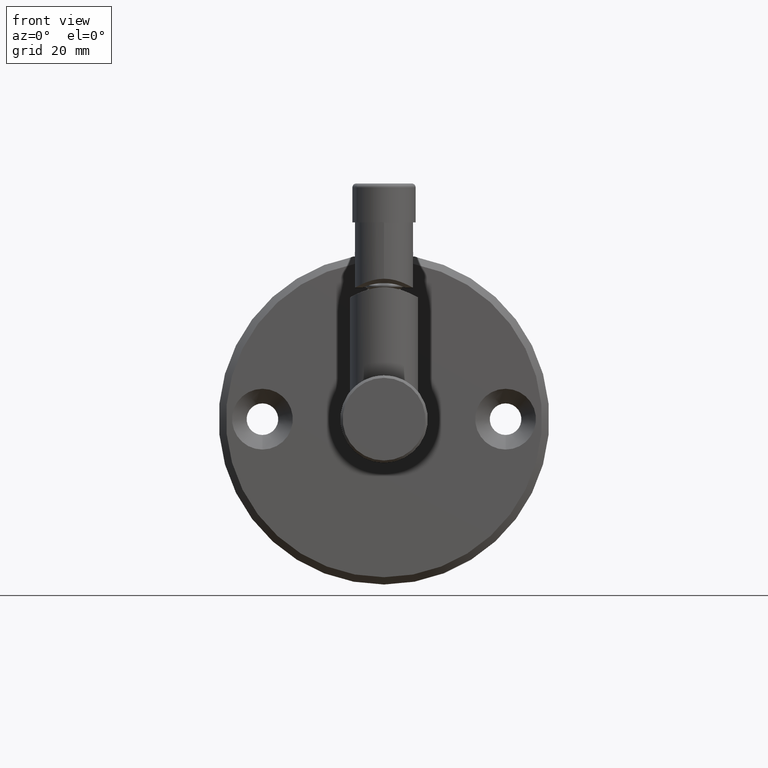
[diagram: clean part render]
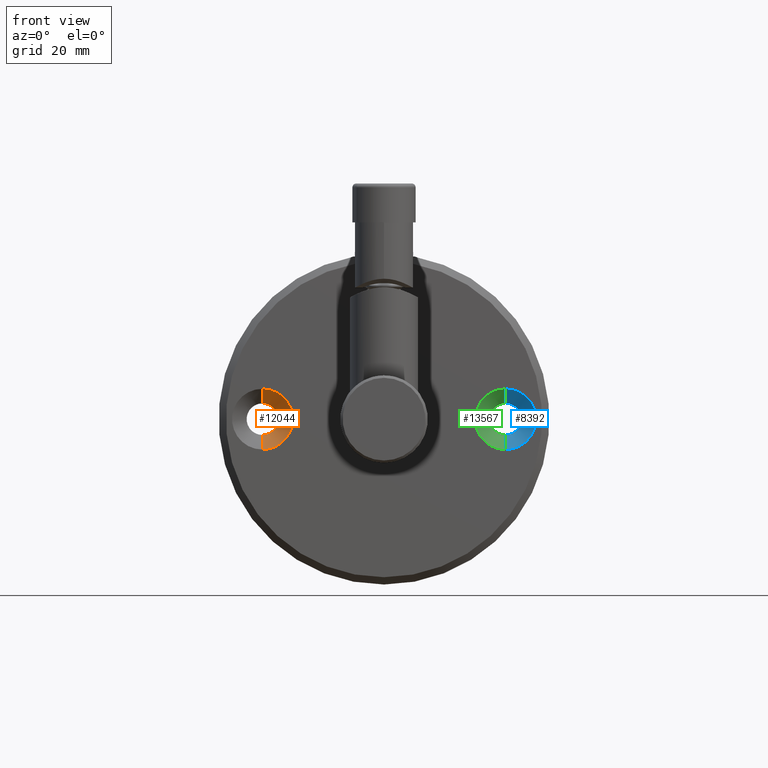
[diagram: same view with three faces highlighted in distinct colors, each labeled with its STEP entity id]
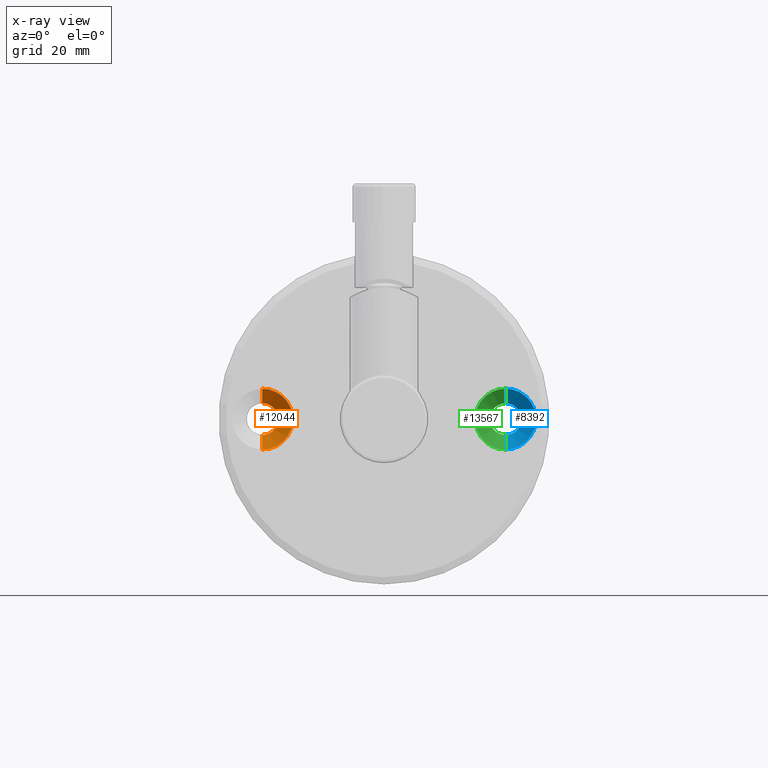
[diagram: x-ray of the same camera — body ghosted, the three highlighted faces saturated]
A machine part, front view with three faces highlighted in distinct colors.
The next image is the same camera in x-ray (body ghosted, the three faces saturated) — at least one of them is partly hidden behind the body in this view.
Their STEP definitions:

[orange] entity #12044 — the highlighted conical surface has half-angle 45 deg.
#1765 = EDGE_CURVE ( 'NONE', #8810, #17771, #25457, .T. ) ;
#2707 = EDGE_CURVE ( 'NONE', #12103, #17771, #18341, .T. ) ;
#3837 = ORIENTED_EDGE ( 'NONE', *, *, #1765, .T. ) ;
#4221 = DIRECTION ( 'NONE',  ( 0.000000000000000000, 0.000000000000000000, 1.000000000000000000 ) ) ;
#4279 = DIRECTION ( 'NONE',  ( 0.7071067811865479058, 0.000000000000000000, 0.7071067811865470176 ) ) ;
#4435 = DIRECTION ( 'NONE',  ( 0.000000000000000000, 0.000000000000000000, 1.000000000000000000 ) ) ;
#4451 = CARTESIAN_POINT ( 'NONE',  ( 6.250000000000006217, -25.00000000000000000, 1.800000000000000488 ) ) ;
#4464 = VERTEX_POINT ( 'NONE', #25448 ) ;
#4734 = CIRCLE ( 'NONE', #18809, 3.250000000000000888 ) ;
#5230 = ORIENTED_EDGE ( 'NONE', *, *, #22059, .T. ) ;
#5260 = ORIENTED_EDGE ( 'NONE', *, *, #2707, .F. ) ;
#6231 = DIRECTION ( 'NONE',  ( 1.000000000000000000, 0.000000000000000000, 0.000000000000000000 ) ) ;
#7490 = DIRECTION ( 'NONE',  ( -0.7071067811865479058, 8.659560562354937789E-17, 0.7071067811865470176 ) ) ;
#7492 = ORIENTED_EDGE ( 'NONE', *, *, #23930, .F. ) ;
#8379 = DIRECTION ( 'NONE',  ( 1.000000000000000000, 0.000000000000000000, 0.000000000000000000 ) ) ;
#8810 = VERTEX_POINT ( 'NONE', #4451 ) ;
#11624 = VECTOR ( 'NONE', #4279, 1000.000000000000114 ) ;
#12044 = ADVANCED_FACE ( 'NONE', ( #18148 ), #23098, .F. ) ;
#12103 = VERTEX_POINT ( 'NONE', #25570 ) ;
#13058 = VECTOR ( 'NONE', #7490, 1000.000000000000114 ) ;
#14495 = CARTESIAN_POINT ( 'NONE',  ( -6.249999999999994671, -25.00000000000000000, 1.800000000000000488 ) ) ;
#15486 = DIRECTION ( 'NONE',  ( 0.000000000000000000, 0.000000000000000000, 1.000000000000000000 ) ) ;
#15844 = EDGE_LOOP ( 'NONE', ( #5260, #7492, #5230, #3837 ) ) ;
#16142 = CARTESIAN_POINT ( 'NONE',  ( 5.640276577966111523E-15, -25.00000000000000000, -1.199999999999995293 ) ) ;
#17771 = VERTEX_POINT ( 'NONE', #14495 ) ;
#17820 = LINE ( 'NONE', #22033, #11624 ) ;
#18148 = FACE_OUTER_BOUND ( 'NONE', #15844, .T. ) ;
#18341 = LINE ( 'NONE', #23593, #13058 ) ;
#18809 = AXIS2_PLACEMENT_3D ( 'NONE', #16142, #4435, #8379 ) ;
#21184 = AXIS2_PLACEMENT_3D ( 'NONE', #25243, #4221, #6231 ) ;
#21530 = DIRECTION ( 'NONE',  ( 1.000000000000000000, 0.000000000000000000, 0.000000000000000000 ) ) ;
#22033 = CARTESIAN_POINT ( 'NONE',  ( 6.250000000000006217, -25.00000000000000000, 1.800000000000000488 ) ) ;
#22059 = EDGE_CURVE ( 'NONE', #4464, #8810, #17820, .T. ) ;
#23098 = CONICAL_SURFACE ( 'NONE', #21184, 6.250000000000000000, 0.7853981633974489451 ) ;
#23593 = CARTESIAN_POINT ( 'NONE',  ( -6.249999999999994671, -25.00000000000000000, 1.800000000000000488 ) ) ;
#23930 = EDGE_CURVE ( 'NONE', #4464, #12103, #4734, .T. ) ;
#25243 = CARTESIAN_POINT ( 'NONE',  ( 5.640276577966111523E-15, -25.00000000000000000, 1.800000000000000488 ) ) ;
#25305 = AXIS2_PLACEMENT_3D ( 'NONE', #25569, #15486, #21530 ) ;
#25448 = CARTESIAN_POINT ( 'NONE',  ( 3.250000000000006217, -25.00000000000000000, -1.199999999999995293 ) ) ;
#25457 = CIRCLE ( 'NONE', #25305, 6.250000000000000000 ) ;
#25569 = CARTESIAN_POINT ( 'NONE',  ( 5.640276577966111523E-15, -25.00000000000000000, 1.800000000000000488 ) ) ;
#25570 = CARTESIAN_POINT ( 'NONE',  ( -3.249999999999995115, -25.00000000000000000, -1.199999999999995293 ) ) ;

[blue] entity #8392 — the highlighted conical surface has half-angle 45 deg.
#773 = VECTOR ( 'NONE', #15344, 1000.000000000000114 ) ;
#846 = DIRECTION ( 'NONE',  ( 1.000000000000000000, 0.000000000000000000, 0.000000000000000000 ) ) ;
#1101 = AXIS2_PLACEMENT_3D ( 'NONE', #10360, #2812, #846 ) ;
#1439 = EDGE_CURVE ( 'NONE', #10098, #7257, #24189, .T. ) ;
#1521 = CARTESIAN_POINT ( 'NONE',  ( -6.249999999999994671, 25.00000000000000000, 1.800000000000000488 ) ) ;
#1648 = VECTOR ( 'NONE', #18369, 1000.000000000000114 ) ;
#2812 = DIRECTION ( 'NONE',  ( 0.000000000000000000, 0.000000000000000000, 1.000000000000000000 ) ) ;
#3282 = CIRCLE ( 'NONE', #1101, 3.250000000000000888 ) ;
#3347 = FACE_OUTER_BOUND ( 'NONE', #23308, .T. ) ;
#6728 = CARTESIAN_POINT ( 'NONE',  ( -3.249999999999995115, 25.00000000000000000, -1.199999999999995293 ) ) ;
#7098 = VERTEX_POINT ( 'NONE', #6728 ) ;
#7257 = VERTEX_POINT ( 'NONE', #13991 ) ;
#7564 = CARTESIAN_POINT ( 'NONE',  ( 5.640276577966111523E-15, 25.00000000000000000, 1.800000000000000488 ) ) ;
#7585 = CIRCLE ( 'NONE', #22423, 6.250000000000000000 ) ;
#8392 = ADVANCED_FACE ( 'NONE', ( #3347 ), #23726, .F. ) ;
#8579 = DIRECTION ( 'NONE',  ( 1.000000000000000000, 0.000000000000000000, 0.000000000000000000 ) ) ;
#9110 = LINE ( 'NONE', #1521, #773 ) ;
#10098 = VERTEX_POINT ( 'NONE', #22722 ) ;
#10360 = CARTESIAN_POINT ( 'NONE',  ( 5.640276577966111523E-15, 25.00000000000000000, -1.199999999999995293 ) ) ;
#12675 = CARTESIAN_POINT ( 'NONE',  ( -6.249999999999994671, 25.00000000000000000, 1.800000000000000488 ) ) ;
#13991 = CARTESIAN_POINT ( 'NONE',  ( 6.250000000000006217, 25.00000000000000000, 1.800000000000000488 ) ) ;
#14455 = CARTESIAN_POINT ( 'NONE',  ( 5.640276577966111523E-15, 25.00000000000000000, 1.800000000000000488 ) ) ;
#14467 = EDGE_CURVE ( 'NONE', #10098, #7098, #3282, .T. ) ;
#14643 = ORIENTED_EDGE ( 'NONE', *, *, #14467, .F. ) ;
#15344 = DIRECTION ( 'NONE',  ( -0.7071067811865479058, 8.659560562354937789E-17, 0.7071067811865470176 ) ) ;
#15646 = EDGE_CURVE ( 'NONE', #7098, #20555, #9110, .T. ) ;
#16200 = ORIENTED_EDGE ( 'NONE', *, *, #16676, .T. ) ;
#16676 = EDGE_CURVE ( 'NONE', #7257, #20555, #7585, .T. ) ;
#16756 = DIRECTION ( 'NONE',  ( 0.000000000000000000, 0.000000000000000000, 1.000000000000000000 ) ) ;
#18123 = ORIENTED_EDGE ( 'NONE', *, *, #1439, .T. ) ;
#18369 = DIRECTION ( 'NONE',  ( 0.7071067811865479058, 0.000000000000000000, 0.7071067811865470176 ) ) ;
#18967 = ORIENTED_EDGE ( 'NONE', *, *, #15646, .F. ) ;
#19003 = DIRECTION ( 'NONE',  ( 1.000000000000000000, 0.000000000000000000, 0.000000000000000000 ) ) ;
#20555 = VERTEX_POINT ( 'NONE', #12675 ) ;
#22423 = AXIS2_PLACEMENT_3D ( 'NONE', #14455, #16756, #8579 ) ;
#22722 = CARTESIAN_POINT ( 'NONE',  ( 3.250000000000006217, 25.00000000000000000, -1.199999999999995293 ) ) ;
#23308 = EDGE_LOOP ( 'NONE', ( #18967, #14643, #18123, #16200 ) ) ;
#23726 = CONICAL_SURFACE ( 'NONE', #23757, 6.250000000000000000, 0.7853981633974489451 ) ;
#23757 = AXIS2_PLACEMENT_3D ( 'NONE', #7564, #24880, #19003 ) ;
#24189 = LINE ( 'NONE', #24222, #1648 ) ;
#24222 = CARTESIAN_POINT ( 'NONE',  ( 6.250000000000006217, 25.00000000000000000, 1.800000000000000488 ) ) ;
#24880 = DIRECTION ( 'NONE',  ( 0.000000000000000000, 0.000000000000000000, 1.000000000000000000 ) ) ;

[green] entity #13567 — the highlighted conical surface has half-angle 45 deg.
#773 = VECTOR ( 'NONE', #15344, 1000.000000000000114 ) ;
#1377 = CARTESIAN_POINT ( 'NONE',  ( 5.640276577966111523E-15, 25.00000000000000000, 1.800000000000000488 ) ) ;
#1439 = EDGE_CURVE ( 'NONE', #10098, #7257, #24189, .T. ) ;
#1521 = CARTESIAN_POINT ( 'NONE',  ( -6.249999999999994671, 25.00000000000000000, 1.800000000000000488 ) ) ;
#1648 = VECTOR ( 'NONE', #18369, 1000.000000000000114 ) ;
#2797 = DIRECTION ( 'NONE',  ( 0.000000000000000000, 0.000000000000000000, 1.000000000000000000 ) ) ;
#4731 = CARTESIAN_POINT ( 'NONE',  ( 5.640276577966111523E-15, 25.00000000000000000, 1.800000000000000488 ) ) ;
#5077 = ORIENTED_EDGE ( 'NONE', *, *, #22691, .F. ) ;
#5600 = DIRECTION ( 'NONE',  ( 0.000000000000000000, 0.000000000000000000, 1.000000000000000000 ) ) ;
#5699 = AXIS2_PLACEMENT_3D ( 'NONE', #4731, #18500, #12614 ) ;
#6728 = CARTESIAN_POINT ( 'NONE',  ( -3.249999999999995115, 25.00000000000000000, -1.199999999999995293 ) ) ;
#7098 = VERTEX_POINT ( 'NONE', #6728 ) ;
#7257 = VERTEX_POINT ( 'NONE', #13991 ) ;
#8661 = ORIENTED_EDGE ( 'NONE', *, *, #24100, .T. ) ;
#9110 = LINE ( 'NONE', #1521, #773 ) ;
#10098 = VERTEX_POINT ( 'NONE', #22722 ) ;
#10727 = FACE_OUTER_BOUND ( 'NONE', #24545, .T. ) ;
#11024 = AXIS2_PLACEMENT_3D ( 'NONE', #22517, #2797, #22761 ) ;
#12570 = CONICAL_SURFACE ( 'NONE', #5699, 6.250000000000000000, 0.7853981633974489451 ) ;
#12614 = DIRECTION ( 'NONE',  ( 1.000000000000000000, 0.000000000000000000, 0.000000000000000000 ) ) ;
#12675 = CARTESIAN_POINT ( 'NONE',  ( -6.249999999999994671, 25.00000000000000000, 1.800000000000000488 ) ) ;
#13567 = ADVANCED_FACE ( 'NONE', ( #10727 ), #12570, .F. ) ;
#13991 = CARTESIAN_POINT ( 'NONE',  ( 6.250000000000006217, 25.00000000000000000, 1.800000000000000488 ) ) ;
#14881 = CIRCLE ( 'NONE', #18353, 6.250000000000000000 ) ;
#15344 = DIRECTION ( 'NONE',  ( -0.7071067811865479058, 8.659560562354937789E-17, 0.7071067811865470176 ) ) ;
#15646 = EDGE_CURVE ( 'NONE', #7098, #20555, #9110, .T. ) ;
#18353 = AXIS2_PLACEMENT_3D ( 'NONE', #1377, #5600, #23060 ) ;
#18369 = DIRECTION ( 'NONE',  ( 0.7071067811865479058, 0.000000000000000000, 0.7071067811865470176 ) ) ;
#18500 = DIRECTION ( 'NONE',  ( 0.000000000000000000, 0.000000000000000000, 1.000000000000000000 ) ) ;
#20200 = ORIENTED_EDGE ( 'NONE', *, *, #1439, .F. ) ;
#20555 = VERTEX_POINT ( 'NONE', #12675 ) ;
#22517 = CARTESIAN_POINT ( 'NONE',  ( 5.640276577966111523E-15, 25.00000000000000000, -1.199999999999995293 ) ) ;
#22691 = EDGE_CURVE ( 'NONE', #7098, #10098, #24173, .T. ) ;
#22722 = CARTESIAN_POINT ( 'NONE',  ( 3.250000000000006217, 25.00000000000000000, -1.199999999999995293 ) ) ;
#22761 = DIRECTION ( 'NONE',  ( 1.000000000000000000, 0.000000000000000000, 0.000000000000000000 ) ) ;
#23060 = DIRECTION ( 'NONE',  ( 1.000000000000000000, 0.000000000000000000, 0.000000000000000000 ) ) ;
#24100 = EDGE_CURVE ( 'NONE', #20555, #7257, #14881, .T. ) ;
#24173 = CIRCLE ( 'NONE', #11024, 3.250000000000000888 ) ;
#24189 = LINE ( 'NONE', #24222, #1648 ) ;
#24222 = CARTESIAN_POINT ( 'NONE',  ( 6.250000000000006217, 25.00000000000000000, 1.800000000000000488 ) ) ;
#24494 = ORIENTED_EDGE ( 'NONE', *, *, #15646, .T. ) ;
#24545 = EDGE_LOOP ( 'NONE', ( #5077, #24494, #8661, #20200 ) ) ;